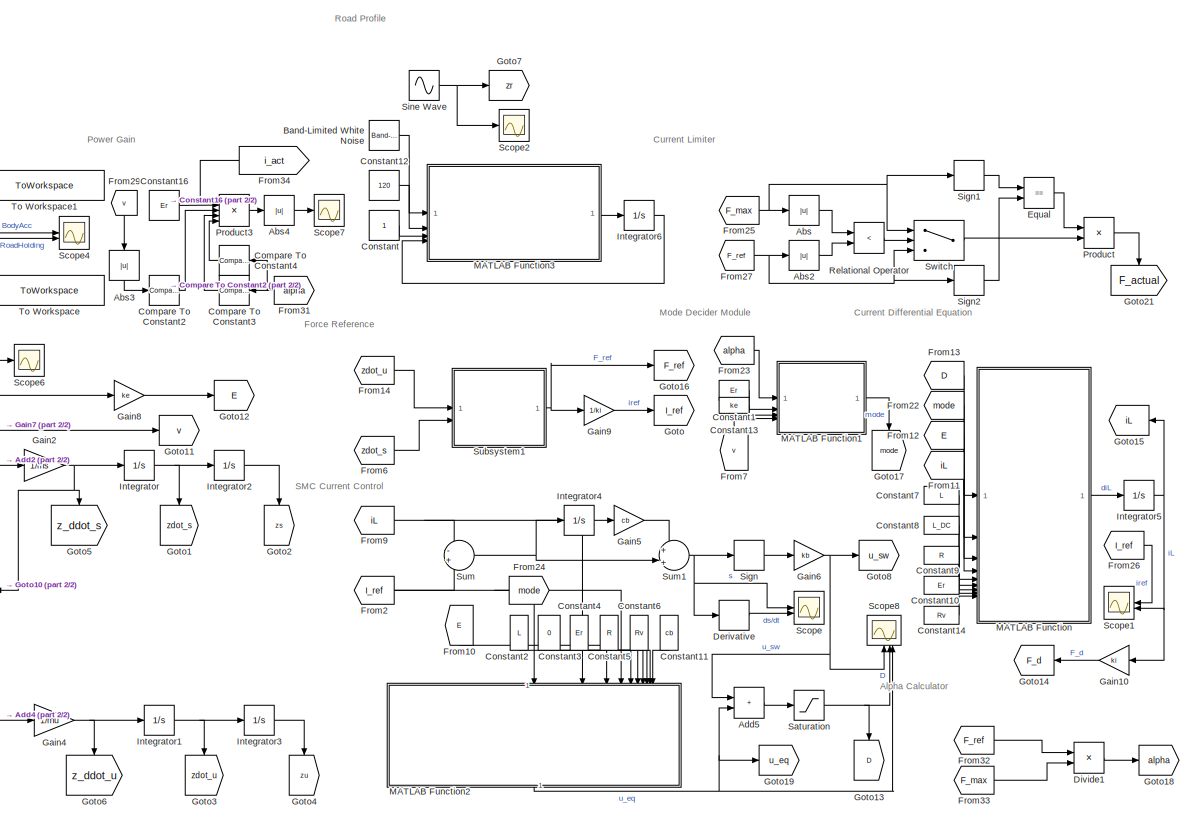
[diagram: root canvas - part 1/2, center side, full height]
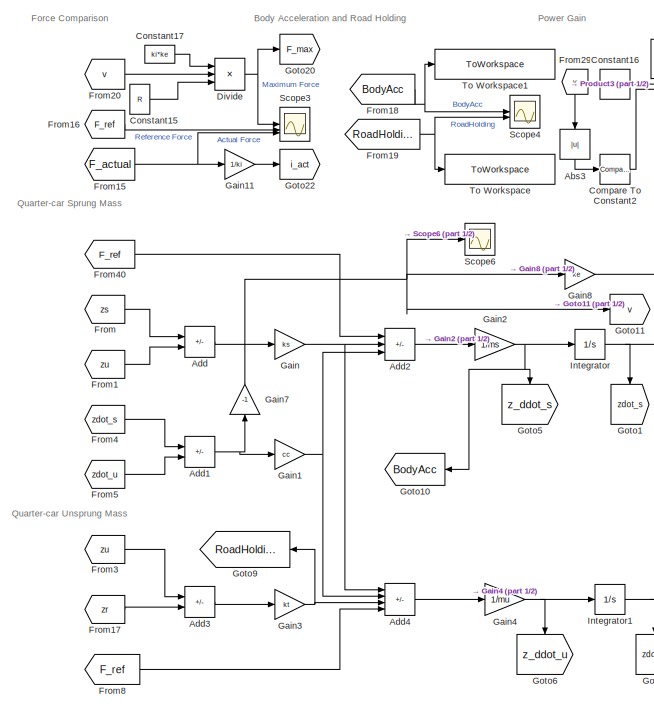
[diagram: root canvas - part 2/2, left side, full height]
MODEL slx_14dfaf5b9d4b
KIND model
CONFIG AbsTol = auto
CONFIG EnableMultiTasking = off
CONFIG FixedStep = 1e-6
CONFIG MaxStep = 1e-3
CONFIG MinStep = 1e-8
CONFIG RelTol = 1e-4
CONFIG SampleTimeConstraint = Unconstrained
CONFIG SolverName = FixedStepAuto
CONFIG StartTime = 0.0
CONFIG StopTime = 1.5
BLOCK [Abs] Abs
  SaturateOnIntegerOverflow = off
BLOCK [Abs] Abs2
  SaturateOnIntegerOverflow = off
BLOCK [Abs] Abs3
  NameLocation = left
  SaturateOnIntegerOverflow = off
BLOCK [Abs] Abs4
  SaturateOnIntegerOverflow = off
BLOCK [Sum] Add
  IconShape = rectangular
  Inputs = +-
BLOCK [Sum] Add1
  IconShape = rectangular
  Inputs = +-
BLOCK [Sum] Add2
  IconShape = rectangular
  Inputs = +--
BLOCK [Sum] Add3
  IconShape = rectangular
  Inputs = +-
BLOCK [Sum] Add4
  IconShape = rectangular
  Inputs = ++--
BLOCK [Sum] Add5
  IconShape = rectangular
BLOCK [Reference] Band-Limited White Noise  REF=simulink/Sources/Band-Limited
White Noise
  SourceBlock = simulink/Sources/Band-Limited\nWhite Noise
  SourceType = Band-Limited White Noise.
BLOCK [Reference] Compare To Constant2  REF=simulink/Logic and Bit
Operations/Compare
To Constant
  SourceBlock = simulink/Logic and Bit\nOperations/Compare\nTo Constant
  SourceType = Compare To Constant
BLOCK [Reference] Compare To Constant3  REF=simulink/Logic and Bit
Operations/Compare
To Constant
  NameLocation = top
  SourceBlock = simulink/Logic and Bit\nOperations/Compare\nTo Constant
  SourceType = Compare To Constant
BLOCK [Reference] Compare To Constant4  REF=simulink/Logic and Bit
Operations/Compare
To Constant
  NameLocation = top
  SourceBlock = simulink/Logic and Bit\nOperations/Compare\nTo Constant
  SourceType = Compare To Constant
BLOCK [Constant] Constant
BLOCK [Constant] Constant1
  Value = Er
BLOCK [Constant] Constant10
  Value = Er
BLOCK [Constant] Constant11
  NameLocation = left
  Value = cb
BLOCK [Constant] Constant12
  Value = 120
BLOCK [Constant] Constant13
  Value = ke
BLOCK [Constant] Constant14
  Value = Rv
BLOCK [Constant] Constant15
  Value = R
BLOCK [Constant] Constant16
  Value = Er
BLOCK [Constant] Constant17
  Value = ki*ke
BLOCK [Constant] Constant2
  NameLocation = left
  Value = L
BLOCK [Constant] Constant3
  NameLocation = left
  Value = 0
BLOCK [Constant] Constant4
  NameLocation = left
  Value = Er
BLOCK [Constant] Constant5
  NameLocation = left
  Value = R
BLOCK [Constant] Constant6
  NameLocation = left
  Value = Rv
BLOCK [Constant] Constant7
  Value = L
BLOCK [Constant] Constant8
  Value = L_DC
BLOCK [Constant] Constant9
  Value = R
BLOCK [Derivative] Derivative
BLOCK [Product] Divide
  Inputs = **/
BLOCK [Product] Divide1
  Inputs = */
BLOCK [RelationalOperator] Equal
  InputSameDT = off
  Operator = ==
  OutDataTypeStr = boolean
  RndMeth = Simplest
BLOCK [From] From
  GotoTag = zs
BLOCK [From] From1
  GotoTag = zu
BLOCK [From] From10
  GotoTag = E
  NameLocation = left
BLOCK [From] From11
  GotoTag = iL
BLOCK [From] From12
  GotoTag = E
BLOCK [From] From13
  GotoTag = D
BLOCK [From] From14
  GotoTag = zdot_u
BLOCK [From] From15
  GotoTag = F_actual
BLOCK [From] From16
  GotoTag = F_ref
BLOCK [From] From17
  GotoTag = zr
BLOCK [From] From18
  GotoTag = BodyAcc
BLOCK [From] From19
  GotoTag = RoadHolding
BLOCK [From] From2
  GotoTag = I_ref
BLOCK [From] From20
  GotoTag = v
BLOCK [From] From22
  GotoTag = mode
BLOCK [From] From23
  GotoTag = alpha
BLOCK [From] From24
  GotoTag = mode
  NameLocation = top
BLOCK [From] From25
  GotoTag = F_max
BLOCK [From] From26
  GotoTag = I_ref
BLOCK [From] From27
  GotoTag = F_ref
  NameLocation = top
BLOCK [From] From29
  GotoTag = v
  NameLocation = left
BLOCK [From] From3
  GotoTag = zu
BLOCK [From] From31
  GotoTag = alpha
  NameLocation = top
BLOCK [From] From32
  GotoTag = F_ref
BLOCK [From] From33
  GotoTag = F_max
BLOCK [From] From34
  GotoTag = i_act
  NameLocation = top
BLOCK [From] From4
  GotoTag = zdot_s
BLOCK [From] From40
  GotoTag = F_ref
BLOCK [From] From5
  GotoTag = zdot_u
BLOCK [From] From6
  GotoTag = zdot_s
BLOCK [From] From7
  GotoTag = v
  NameLocation = right
BLOCK [From] From8
  GotoTag = F_ref
BLOCK [From] From9
  GotoTag = iL
BLOCK [Gain] Gain
  Gain = ks
BLOCK [Gain] Gain1
  Commented = on
  Gain = cc
BLOCK [Gain] Gain10
  Gain = ki
  NameLocation = top
BLOCK [Gain] Gain11
  Gain = 1/ki
BLOCK [Gain] Gain2
  Gain = 1/ms
BLOCK [Gain] Gain3
  Gain = kt
BLOCK [Gain] Gain4
  Gain = 1/mu
BLOCK [Gain] Gain5
  Gain = cb
BLOCK [Gain] Gain6
  Gain = kb
BLOCK [Gain] Gain7
  Gain = -1
  NameLocation = right
BLOCK [Gain] Gain8
  Gain = ke
BLOCK [Gain] Gain9
  Gain = 1/ki
BLOCK [Goto] Goto
  GotoTag = I_ref
BLOCK [Goto] Goto1
  GotoTag = zdot_s
  NameLocation = left
BLOCK [Goto] Goto10
  GotoTag = BodyAcc
  NameLocation = top
BLOCK [Goto] Goto11
  GotoTag = v
BLOCK [Goto] Goto12
  GotoTag = E
BLOCK [Goto] Goto13
  GotoTag = D
  NameLocation = left
BLOCK [Goto] Goto14
  GotoTag = F_d
  NameLocation = top
BLOCK [Goto] Goto15
  GotoTag = iL
  NameLocation = top
BLOCK [Goto] Goto16
  GotoTag = F_ref
BLOCK [Goto] Goto17
  GotoTag = mode
  NameLocation = left
BLOCK [Goto] Goto18
  GotoTag = alpha
BLOCK [Goto] Goto19
  GotoTag = u_eq
BLOCK [Goto] Goto2
  GotoTag = zs
  NameLocation = left
BLOCK [Goto] Goto20
  GotoTag = F_max
BLOCK [Goto] Goto21
  GotoTag = F_actual
  NameLocation = left
BLOCK [Goto] Goto22
  GotoTag = i_act
BLOCK [Goto] Goto3
  GotoTag = zdot_u
  NameLocation = left
BLOCK [Goto] Goto4
  GotoTag = zu
  NameLocation = left
BLOCK [Goto] Goto5
  GotoTag = z_ddot_s
  NameLocation = left
BLOCK [Goto] Goto6
  GotoTag = z_ddot_u
  NameLocation = left
BLOCK [Goto] Goto7
  GotoTag = zr
BLOCK [Goto] Goto8
  GotoTag = u_sw
BLOCK [Goto] Goto9
  GotoTag = RoadHolding
  NameLocation = top
BLOCK [Integrator] Integrator
BLOCK [Integrator] Integrator1
BLOCK [Integrator] Integrator2
BLOCK [Integrator] Integrator3
BLOCK [Integrator] Integrator4
BLOCK [Integrator] Integrator5
BLOCK [Integrator] Integrator6
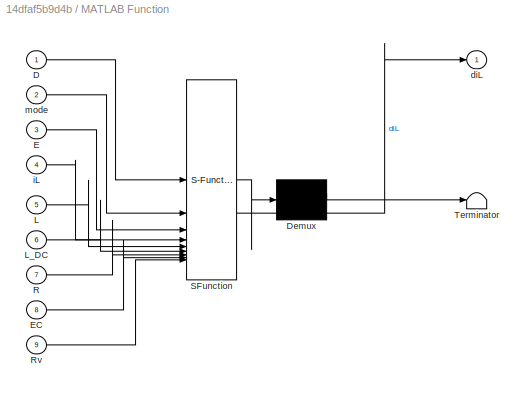
BLOCK [SubSystem] MATLAB Function
  ErrorFcn = Stateflow.Translate.translate
  PermitHierarchicalResolution = ExplicitOnly
  SFBlockType = MATLAB Function
  TreatAsAtomicUnit = on
BLOCK [Demux] MATLAB Function/ Demux 
  Outputs = 1
BLOCK [S-Function] MATLAB Function/ SFunction 
  EnableBusSupport = off
  FunctionName = sf_sfun
  PortCounts = [9 2]
  SFcnIsStateOwnerBlock = off
  SFunctionDeploymentMode = off
  Tag = Stateflow S-Function 2
BLOCK [Terminator] MATLAB Function/ Terminator 
BLOCK [Inport] MATLAB Function/D
BLOCK [Inport] MATLAB Function/E
  Port = 3
BLOCK [Inport] MATLAB Function/EC
  Port = 8
BLOCK [Inport] MATLAB Function/L
  Port = 5
BLOCK [Inport] MATLAB Function/L_DC
  Port = 6
BLOCK [Inport] MATLAB Function/R
  Port = 7
BLOCK [Inport] MATLAB Function/Rv
  Port = 9
BLOCK [Outport] MATLAB Function/diL
BLOCK [Inport] MATLAB Function/iL
  Port = 4
BLOCK [Inport] MATLAB Function/mode
  Port = 2
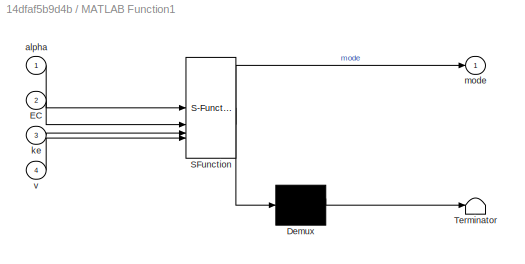
BLOCK [SubSystem] MATLAB Function1
  ErrorFcn = Stateflow.Translate.translate
  PermitHierarchicalResolution = ExplicitOnly
  SFBlockType = MATLAB Function
  TreatAsAtomicUnit = on
BLOCK [Demux] MATLAB Function1/ Demux 
  Outputs = 1
BLOCK [S-Function] MATLAB Function1/ SFunction 
  EnableBusSupport = off
  FunctionName = sf_sfun
  PortCounts = [4 2]
  SFcnIsStateOwnerBlock = off
  SFunctionDeploymentMode = off
  Tag = Stateflow S-Function 1
BLOCK [Terminator] MATLAB Function1/ Terminator 
BLOCK [Inport] MATLAB Function1/EC
  Port = 2
BLOCK [Inport] MATLAB Function1/alpha
BLOCK [Inport] MATLAB Function1/ke
  Port = 3
BLOCK [Outport] MATLAB Function1/mode
BLOCK [Inport] MATLAB Function1/v
  Port = 4
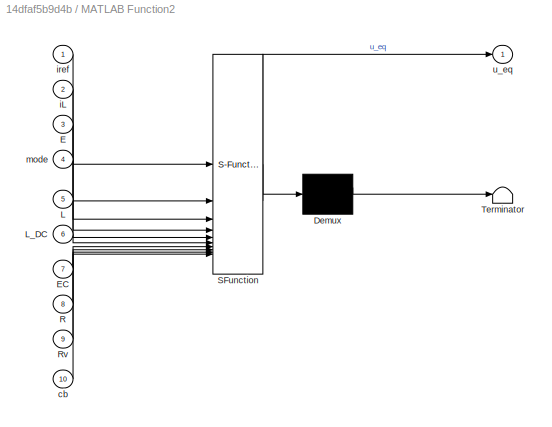
BLOCK [SubSystem] MATLAB Function2
  ErrorFcn = Stateflow.Translate.translate
  NameLocation = left
  PermitHierarchicalResolution = ExplicitOnly
  SFBlockType = MATLAB Function
  TreatAsAtomicUnit = on
BLOCK [Demux] MATLAB Function2/ Demux 
  Outputs = 1
BLOCK [S-Function] MATLAB Function2/ SFunction 
  EnableBusSupport = off
  FunctionName = sf_sfun
  PortCounts = [10 2]
  SFcnIsStateOwnerBlock = off
  SFunctionDeploymentMode = off
  Tag = Stateflow S-Function 3
BLOCK [Terminator] MATLAB Function2/ Terminator 
BLOCK [Inport] MATLAB Function2/E
  Port = 3
BLOCK [Inport] MATLAB Function2/EC
  Port = 7
BLOCK [Inport] MATLAB Function2/L
  Port = 5
BLOCK [Inport] MATLAB Function2/L_DC
  Port = 6
BLOCK [Inport] MATLAB Function2/R
  Port = 8
BLOCK [Inport] MATLAB Function2/Rv
  Port = 9
BLOCK [Inport] MATLAB Function2/cb
  Port = 10
BLOCK [Inport] MATLAB Function2/iL
  Port = 2
BLOCK [Inport] MATLAB Function2/iref
BLOCK [Inport] MATLAB Function2/mode
  Port = 4
BLOCK [Outport] MATLAB Function2/u_eq
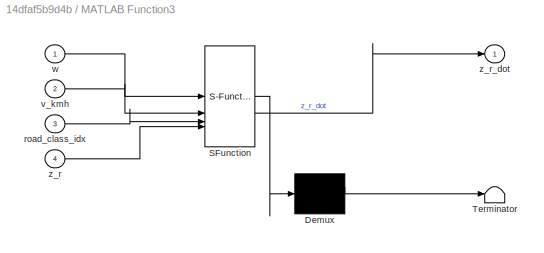
BLOCK [SubSystem] MATLAB Function3
  ErrorFcn = Stateflow.Translate.translate
  PermitHierarchicalResolution = ExplicitOnly
  SFBlockType = MATLAB Function
  TreatAsAtomicUnit = on
BLOCK [Demux] MATLAB Function3/ Demux 
  Outputs = 1
BLOCK [S-Function] MATLAB Function3/ SFunction 
  EnableBusSupport = off
  FunctionName = sf_sfun
  PortCounts = [4 2]
  SFcnIsStateOwnerBlock = off
  SFunctionDeploymentMode = off
  Tag = Stateflow S-Function 4
BLOCK [Terminator] MATLAB Function3/ Terminator 
BLOCK [Inport] MATLAB Function3/road_class_idx
  Port = 3
BLOCK [Inport] MATLAB Function3/v_kmh
  Port = 2
BLOCK [Inport] MATLAB Function3/w
BLOCK [Inport] MATLAB Function3/z_r
  Port = 4
BLOCK [Outport] MATLAB Function3/z_r_dot
BLOCK [Product] Product
BLOCK [Product] Product3
  Inputs = 5
BLOCK [RelationalOperator] Relational Operator
  InputSameDT = off
  Operator = <
  OutDataTypeStr = boolean
  RndMeth = Simplest
BLOCK [Saturate] Saturation
  LowerLimit = 0
  UpperLimit = 1
BLOCK [Scope] Scope
  ActiveDisplayYMaximum = 2.8156790267575293
  ActiveDisplayYMinimum = -2.7447489042083522
  DataLoggingVariableName = ScopeData2
  Floating = off
  GraphicalSettings = {"Style":{"BackgroundColor":[0.12941176470588237,0.12941176470588237,0.12941176470588237],"AxesColor":[0.07058823529411765,0.07058823529411765,0.07058823529411765],"LabelsColor":[0.8509803921568627,0.8509803921568627,0.8509803921568627],"PreserveColors":false,"Visible":[true,true],"LineStyle":["-","-"],"LineWidth":[1.5,1.5],"BarWidth":[0.9,0.9],"LineColor":["auto","auto"],"LineFaceAlpha":[1,1],"Li...<+2401ch>
  LayoutDimensionsString = [1, 2]
  MultipleDisplayCache = [{"MaxYLimMag":2.8156790267575293,"MaxYLimReal":2.8156790267575293,"MinYLimMag":0,"MinYLimReal":-2.7447489042083522,"PlotAsMagnitudePhase":false,"ShowGrid":true,"ShowLegend":true,"Title":"%<SignalLabel>","YLabel":""},{"MaxYLimMag":45.98161752291157,"MaxYLimReal":45.791063072420066,"MinYLimMag":0,"MinYLimReal":-45.98161752291157,"PlotAsMagnitudePhase":false,"ShowGrid":true,"ShowLegend":true,"Title"...<+31ch>
  NumInputPorts = 2
  ScopeFrameLocation = window
  ShowLegend = on
  Visible = on
  WasSavedAsWebScope = on
  WindowPosition = [241.000000,208.000000,958.000000,484.000000,]
BLOCK [Scope] Scope1
  ActiveDisplayYMaximum = 1
  ActiveDisplayYMinimum = -1
  Floating = off
  GraphicalSettings = {"Style":{"BackgroundColor":[0.12941176470588237,0.12941176470588237,0.12941176470588237],"AxesColor":[0.07058823529411765,0.07058823529411765,0.07058823529411765],"LabelsColor":[0.8509803921568627,0.8509803921568627,0.8509803921568627],"PreserveColors":false,"Visible":[true,true],"LineStyle":["-","-"],"LineWidth":[1.5,1.5],"BarWidth":[0.9,0.9],"LineColor":["auto","auto"],"LineFaceAlpha":[1,1],"Li...<+2091ch>
  MultipleDisplayCache = [{"MaxYLimMag":1,"MaxYLimReal":1,"MinYLimMag":0,"MinYLimReal":-1,"PlotAsMagnitudePhase":false,"ShowGrid":true,"ShowLegend":true,"Title":"%<SignalLabel>","YLabel":""}]
  NameLocation = top
  NumInputPorts = 2
  ScopeFrameLocation = window
  ShowLegend = on
  WasSavedAsWebScope = on
  WindowPosition = [9.000000,9.000000,1424.000000,831.000000,]
BLOCK [Scope] Scope2
  ActiveDisplayYMaximum = 0.037499999999892668
  ActiveDisplayYMinimum = -0.037499999999981493
  DataLoggingVariableName = ScopeData1
  Floating = off
  GraphicalSettings = {"Style":{"BackgroundColor":[0.12941176470588237,0.12941176470588237,0.12941176470588237],"AxesColor":[0.07058823529411765,0.07058823529411765,0.07058823529411765],"LabelsColor":[0.8509803921568627,0.8509803921568627,0.8509803921568627],"PreserveColors":false,"Visible":[true],"LineStyle":["-"],"LineWidth":[1.5],"BarWidth":[0.9],"LineColor":["auto"],"LineFaceAlpha":[1],"LineEdgeAlpha":[1],"Marker":...<+2012ch>
  MultipleDisplayCache = [{"MaxYLimMag":0.037499999999981493,"MaxYLimReal":0.037499999999892668,"MinYLimMag":0,"MinYLimReal":-0.037499999999981493,"PlotAsMagnitudePhase":false,"ShowGrid":true,"ShowLegend":false,"Title":"%<SignalLabel>","YLabel":""}]
  NumInputPorts = 1
  ScopeFrameLocation = window
  Visible = on
  WasSavedAsWebScope = on
  WindowPosition = [440.000000,240.000000,560.000000,420.000000,]
BLOCK [Scope] Scope3
  ActiveDisplayYMaximum = 3069.3182623125076
  ActiveDisplayYMinimum = -3070.1290805811605
  DataLoggingVariableName = ScopeData4
  Floating = off
  GraphicalSettings = {"Style":{"BackgroundColor":[0.12941176470588237,0.12941176470588237,0.12941176470588237],"AxesColor":[0.07058823529411765,0.07058823529411765,0.07058823529411765],"LabelsColor":[0.8509803921568627,0.8509803921568627,0.8509803921568627],"PreserveColors":false,"Visible":[false,true,true],"LineStyle":["-","-","-"],"LineWidth":[1.5,1.5,1.5],"BarWidth":[0.9,0.9,0.9],"LineColor":["auto","auto","auto"],...<+2265ch>
  MultipleDisplayCache = [{"MaxYLimMag":3070.1290805811605,"MaxYLimReal":3069.3182623125076,"MinYLimMag":0,"MinYLimReal":-3070.1290805811605,"PlotAsMagnitudePhase":false,"ShowGrid":true,"ShowLegend":true,"Title":"%<SignalLabel>","YLabel":""}]
  NumInputPorts = 3
  ScopeFrameLocation = window
  ShowLegend = on
  Visible = on
  WasSavedAsWebScope = on
  WindowPosition = [241.000000,208.000000,958.000000,484.000000,]
BLOCK [Scope] Scope4
  ActiveDisplayYMaximum = 2.7604562325107063
  ActiveDisplayYMinimum = -2.7443802906058909
  DataLoggingVariableName = ScopeData5
  Floating = off
  GraphicalSettings = {"Style":{"BackgroundColor":[0.12941176470588237,0.12941176470588237,0.12941176470588237],"AxesColor":[0.07058823529411765,0.07058823529411765,0.07058823529411765],"LabelsColor":[0.8509803921568627,0.8509803921568627,0.8509803921568627],"PreserveColors":false,"Visible":[true,true],"LineStyle":["-","-"],"LineWidth":[1.5,1.5],"BarWidth":[0.9,0.9],"LineColor":["auto","auto"],"LineFaceAlpha":[1,1],"Li...<+2426ch>
  LayoutDimensionsString = [2, 1]
  MultipleDisplayCache = [{"MaxYLimMag":2.7604562325107063,"MaxYLimReal":2.7604562325107063,"MinYLimMag":0,"MinYLimReal":-2.7443802906058909,"PlotAsMagnitudePhase":false,"ShowGrid":true,"ShowLegend":true,"Title":"%<SignalLabel>","YLabel":""},{"MaxYLimMag":245.05874952396346,"MaxYLimReal":238.86069434016116,"MinYLimMag":0,"MinYLimReal":-245.05874952396346,"PlotAsMagnitudePhase":false,"ShowGrid":true,"ShowLegend":true,"Titl...<+33ch>
  NumInputPorts = 2
  ScopeFrameLocation = window
  ShowLegend = on
  Visible = on
  WasSavedAsWebScope = on
  WindowPosition = [1.000000,1.000000,1440.000000,847.000000,]
BLOCK [Scope] Scope6
  ActiveDisplayYMaximum = 0.40056532030192649
  ActiveDisplayYMinimum = -0.36866118759995997
  DataLoggingVariableName = ScopeData6
  Floating = off
  GraphicalSettings = {"Style":{"BackgroundColor":[0.12941176470588237,0.12941176470588237,0.12941176470588237],"AxesColor":[0.07058823529411765,0.07058823529411765,0.07058823529411765],"LabelsColor":[0.8509803921568627,0.8509803921568627,0.8509803921568627],"PreserveColors":false,"Visible":[true],"LineStyle":["-"],"LineWidth":[1.5],"BarWidth":[0.9],"LineColor":["auto"],"LineFaceAlpha":[1],"LineEdgeAlpha":[1],"Marker":...<+1988ch>
  MultipleDisplayCache = [{"MaxYLimMag":0.40056532030192649,"MaxYLimReal":0.40056532030192649,"MinYLimMag":0,"MinYLimReal":-0.36866118759995997,"PlotAsMagnitudePhase":false,"ShowGrid":true,"ShowLegend":false,"Title":"%<SignalLabel>","YLabel":""}]
  NumInputPorts = 1
  ScopeFrameLocation = window
  Visible = on
  WasSavedAsWebScope = on
  WindowPosition = [483.000000,50.000000,958.000000,484.000000,]
BLOCK [Scope] Scope7
  ActiveDisplayYMaximum = 99.083008575405614
  ActiveDisplayYMinimum = -11.009223175045067
  DataLoggingVariableName = ScopeData7
  Floating = off
  GraphicalSettings = {"Style":{"BackgroundColor":[0.12941176470588237,0.12941176470588237,0.12941176470588237],"AxesColor":[0.07058823529411765,0.07058823529411765,0.07058823529411765],"LabelsColor":[0.8509803921568627,0.8509803921568627,0.8509803921568627],"PreserveColors":false,"Visible":[true],"LineStyle":["-"],"LineWidth":[1.5],"BarWidth":[0.9],"LineColor":["auto"],"LineFaceAlpha":[1],"LineEdgeAlpha":[1],"Marker":...<+1989ch>
  MultipleDisplayCache = [{"MaxYLimMag":99.083008575405614,"MaxYLimReal":99.083008575405614,"MinYLimMag":0,"MinYLimReal":-11.009223175045067,"PlotAsMagnitudePhase":false,"ShowGrid":true,"ShowLegend":false,"Title":"%<SignalLabel>","YLabel":""}]
  NumInputPorts = 1
  ScopeFrameLocation = window
  Visible = on
  WasSavedAsWebScope = on
  WindowPosition = [9.000000,9.000000,1424.000000,831.000000,]
BLOCK [Scope] Scope8
  ActiveDisplayYMaximum = 2.8491770678518753
  ActiveDisplayYMinimum = -1.7651094697775311
  DataLoggingVariableName = ScopeData8
  Floating = off
  GraphicalSettings = {"Style":{"BackgroundColor":[0.12941176470588237,0.12941176470588237,0.12941176470588237],"AxesColor":[0.07058823529411765,0.07058823529411765,0.07058823529411765],"LabelsColor":[0.8509803921568627,0.8509803921568627,0.8509803921568627],"PreserveColors":false,"Visible":[true,true,true],"LineStyle":["-","-","-"],"LineWidth":[1.5,1.5,1.5],"BarWidth":[0.9,0.9,0.9],"LineColor":["auto","auto","auto"],"...<+2202ch>
  MultipleDisplayCache = [{"MaxYLimMag":2.8491770678518753,"MaxYLimReal":2.8491770678518753,"MinYLimMag":0,"MinYLimReal":-1.7651094697775311,"PlotAsMagnitudePhase":false,"ShowGrid":true,"ShowLegend":true,"Title":"%<SignalLabel>","YLabel":""}]
  NameLocation = right
  NumInputPorts = 3
  ScopeFrameLocation = window
  ShowLegend = on
  Visible = on
  WasSavedAsWebScope = on
  WindowPosition = [2.000000,50.000000,958.000000,484.000000,]
BLOCK [Signum] Sign
BLOCK [Signum] Sign1
BLOCK [Signum] Sign2
BLOCK [Sin] Sine Wave
  Amplitude = 0.03
  Frequency = 2*pi*1.3
  SampleTime = 0
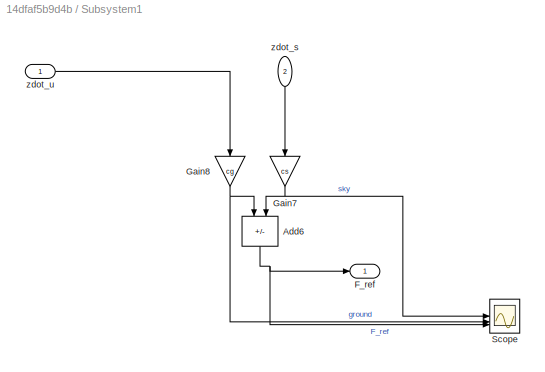
BLOCK [SubSystem] Subsystem1
  NameLocation = top
BLOCK [Sum] Subsystem1/Add6
  IconShape = rectangular
  Inputs = --
  NameLocation = left
BLOCK [Outport] Subsystem1/F_ref
BLOCK [Gain] Subsystem1/Gain7
  Gain = cs
  NameLocation = left
BLOCK [Gain] Subsystem1/Gain8
  Gain = cg
  NameLocation = left
BLOCK [Scope] Subsystem1/Scope
  ActiveDisplayYMaximum = 232.10620472540066
  ActiveDisplayYMinimum = -234.54288401118075
  DataLoggingVariableName = ScopeData10
  Floating = off
  GraphicalSettings = {"Style":{"BackgroundColor":[0.12941176470588237,0.12941176470588237,0.12941176470588237],"AxesColor":[0.07058823529411765,0.07058823529411765,0.07058823529411765],"LabelsColor":[0.8509803921568627,0.8509803921568627,0.8509803921568627],"PreserveColors":false,"Visible":[true,true,true],"LineStyle":["-","-","-"],"LineWidth":[1.5,1.5,1.5],"BarWidth":[0.9,0.9,0.9],"LineColor":["auto","auto","auto"],"...<+2211ch>
  MultipleDisplayCache = [{"MaxYLimMag":234.54288401118075,"MaxYLimReal":232.10620472540066,"MinYLimMag":0,"MinYLimReal":-234.54288401118075,"PlotAsMagnitudePhase":false,"ShowGrid":true,"ShowLegend":true,"Title":"%<SignalLabel>","YLabel":""}]
  NumInputPorts = 3
  ScopeFrameLocation = window
  ShowLegend = on
  Visible = on
  WasSavedAsWebScope = on
  WindowPosition = [8.000000,8.000000,1425.000000,832.000000,]
BLOCK [Inport] Subsystem1/zdot_s
  NameLocation = left
  Port = 2
BLOCK [Inport] Subsystem1/zdot_u
BLOCK [Sum] Sum
  Inputs = -+
BLOCK [Sum] Sum1
  Inputs = +|+||
BLOCK [Switch] Switch
  Criteria = u2 > Threshold
  InputSameDT = off
  SaturateOnIntegerOverflow = off
  Threshold = 0.5
BLOCK [ToWorkspace] To Workspace
  FixptAsFi = on
  MaxDataPoints = inf
  SampleTime = -1
  SaveFormat = Structure With Time
  VariableName = RoadHolding
BLOCK [ToWorkspace] To Workspace1
  FixptAsFi = on
  MaxDataPoints = inf
  SampleTime = -1
  SaveFormat = Structure With Time
  VariableName = BodyAcceleration
ANNOTATION (root): Alpha Calculator
ANNOTATION (root): Body Acceleration and Road Holding
ANNOTATION (root): Current Differential Equation
ANNOTATION (root): Current Limiter
ANNOTATION (root): Force Comparison
ANNOTATION (root): Force Reference
ANNOTATION (root): Mode Decider Module
ANNOTATION (root): Power Gain
ANNOTATION (root): Quarter-car Sprung Mass
ANNOTATION (root): Quarter-car Unsprung Mass
ANNOTATION (root): Road Profile
ANNOTATION (root): SMC Current Control
LINE Abs2:1 -> Relational Operator:2
LINE Abs3:1 -> Compare To Constant2:1
LINE Abs4:1 -> Scope7:1
LINE Abs:1 -> Relational Operator:1
NET Add1:1 -> Gain1:1, Gain7:1
LINE Add2:1 -> Gain2:1
LINE Add3:1 -> Gain3:1
LINE Add4:1 -> Gain4:1
LINE Add5:1 -> Saturation:1
LINE Add:1 -> Gain:1
LINE Band-Limited White Noise:1 -> MATLAB Function3:1
LINE Compare To Constant2:1 -> Product3:3
LINE Compare To Constant3:1 -> Product3:4
LINE Compare To Constant4:1 -> Product3:5
LINE Constant10:1 -> MATLAB Function:8
LINE Constant11:1 -> MATLAB Function2:10
LINE Constant12:1 -> MATLAB Function3:2
LINE Constant13:1 -> MATLAB Function1:3
LINE Constant14:1 -> MATLAB Function:9
LINE Constant15:1 -> Divide:3
LINE Constant16:1 -> Product3:2
LINE Constant17:1 -> Divide:1
LINE Constant1:1 -> MATLAB Function1:2
LINE Constant2:1 -> MATLAB Function2:5
LINE Constant3:1 -> MATLAB Function2:6
LINE Constant4:1 -> MATLAB Function2:7
LINE Constant5:1 -> MATLAB Function2:8
LINE Constant6:1 -> MATLAB Function2:9
LINE Constant7:1 -> MATLAB Function:5
LINE Constant8:1 -> MATLAB Function:6
LINE Constant9:1 -> MATLAB Function:7
LINE Constant:1 -> MATLAB Function3:3
LINE Derivative:1 -> Scope:2
LINE Divide1:1 -> Goto18:1
NET Divide:1 -> Goto20:1, Scope3:1
LINE Equal:1 -> Product:1
LINE From10:1 -> MATLAB Function2:3
LINE From11:1 -> MATLAB Function:4
LINE From12:1 -> MATLAB Function:3
LINE From13:1 -> MATLAB Function:1
LINE From14:1 -> Subsystem1:1
NET From15:1 -> Gain11:1, Scope3:3
LINE From16:1 -> Scope3:2
LINE From17:1 -> Add3:2
NET From18:1 -> Scope4:1, To Workspace1:1
NET From19:1 -> Scope4:2, To Workspace:1
LINE From1:1 -> Add:2
LINE From20:1 -> Divide:2
LINE From22:1 -> MATLAB Function:2
LINE From23:1 -> MATLAB Function1:1
LINE From24:1 -> MATLAB Function2:4
NET From25:1 -> Abs:1, Sign1:1, Switch:1
LINE From26:1 -> Scope1:1
NET From27:1 -> Abs2:1, Sign2:1, Switch:3
LINE From29:1 -> Abs3:1
NET From2:1 -> MATLAB Function2:1, Sum:2
NET From31:1 -> Compare To Constant3:1, Compare To Constant4:1
LINE From32:1 -> Divide1:1
LINE From33:1 -> Divide1:2
LINE From34:1 -> Product3:1
LINE From3:1 -> Add3:1
LINE From40:1 -> Add2:1
LINE From4:1 -> Add1:1
LINE From5:1 -> Add1:2
LINE From6:1 -> Subsystem1:2
LINE From7:1 -> MATLAB Function1:4
LINE From8:1 -> Add4:4
NET From9:1 -> MATLAB Function2:2, Sum:1
LINE From:1 -> Add:1
LINE Gain10:1 -> Goto14:1
LINE Gain11:1 -> Goto22:1
NET Gain1:1 -> Add2:3, Add4:2
NET Gain2:1 -> Goto10:1, Goto5:1, Integrator:1
NET Gain3:1 -> Add4:3, Goto9:1
NET Gain4:1 -> Goto6:1, Integrator1:1
LINE Gain5:1 -> Sum1:1
NET Gain6:1 -> Add5:1, Goto8:1, Scope8:1
NET Gain7:1 -> Gain8:1, Goto11:1, Scope6:1
LINE Gain8:1 -> Goto12:1
LINE Gain9:1 -> Goto:1
NET Gain:1 -> Add2:2, Add4:1
NET Integrator1:1 -> Goto3:1, Integrator3:1
LINE Integrator2:1 -> Goto2:1
LINE Integrator3:1 -> Goto4:1
LINE Integrator4:1 -> Gain5:1
NET Integrator5:1 -> Gain10:1, Goto15:1, Scope1:2
LINE Integrator6:1 -> MATLAB Function3:4
NET Integrator:1 -> Goto1:1, Integrator2:1
LINE MATLAB Function1:1 -> Goto17:1
NET MATLAB Function2:1 -> Add5:2, Goto19:1, Scope8:3
LINE MATLAB Function3:1 -> Integrator6:1
LINE MATLAB Function:1 -> Integrator5:1
LINE Product3:1 -> Abs4:1
LINE Product:1 -> Goto21:1
LINE Relational Operator:1 -> Switch:2
NET Saturation:1 -> Goto13:1, Scope8:2
LINE Sign1:1 -> Equal:1
LINE Sign2:1 -> Equal:2
LINE Sign:1 -> Gain6:1
NET Sine Wave:1 -> Goto7:1, Scope2:1
NET Subsystem1/Add6:1 -> Subsystem1/F_ref:1, Subsystem1/Scope:3
NET Subsystem1/Gain7:1 -> Subsystem1/Add6:2, Subsystem1/Scope:1
NET Subsystem1/Gain8:1 -> Subsystem1/Add6:1, Subsystem1/Scope:2
LINE Subsystem1/zdot_s:1 -> Subsystem1/Gain7:1
LINE Subsystem1/zdot_u:1 -> Subsystem1/Gain8:1
NET Subsystem1:1 -> Gain9:1, Goto16:1
NET Sum1:1 -> Derivative:1, Scope:1, Sign:1
NET Sum:1 -> Integrator4:1, Sum1:2
LINE Switch:1 -> Product:2
note: NET lines group one-source signal fan-out (src -> all destinations, sorted); 1:1 wires keep LINE
CHART MATLAB Function1 states=1 transitions=1
  STATE_LABEL 'eML_blk_kernel()'
  STATE_LABEL 'SCRIPT:\nfunction mode = mode(alpha, EC, ke, v)\n\n    % guard against alpha >= 1\n    if alpha >= 1\n        % semi-active not achievable\n        % both VT1 and VT2 on, passive damper\n        mode = 1;   % or handle separately\n        return\n    end\n\n    v_alpha = EC / (ke * (1 - alpha));\n\n    if abs(v) < v_alpha\n        mode = 1;   % boost\n    else\n        mode = 0;   % buck\n    end\nend'
CHART MATLAB Function states=1 transitions=1
  STATE_LABEL 'eML_blk_kernel()'
  STATE_LABEL 'SCRIPT:\nfunction diL = diL(D, mode, E, iL, L, L_DC, R, EC, Rv)\n    LDC = L + L_DC;\n    if mode == 1  % boost\n        diL = -(R/LDC)*iL - ((1-D)/LDC)*EC + (1/LDC)*E;\n    else          % buck\n        diL  = -((D*R*L + (1-D)*(R+Rv)*LDC)/(L * LDC))*iL - (D/LDC)*EC + (D*L + (1-D)*LDC)/(L * LDC) * E;\n    end\nend'
CHART MATLAB Function2 states=1 transitions=1
  STATE_LABEL 'eML_blk_kernel()'
  STATE_LABEL 'SCRIPT:\nfunction u_eq = controller(iref, iL, E, mode, L, L_DC, EC, R, Rv, cb)\n    LDC = L + L_DC;\n    e   = iref - iL;        % current error\n\n    if mode == 1  % boost\n        numerator   = EC - E + R*iref + cb*e*LDC;\n        denominator = EC;\n        u_eq = numerator / denominator;\n\n    else          % buck\n        numerator   = E - (R + Rv)*iref - cb*e*L;\n        denominator = (L*R*iref)/LDC - ...<+89ch>'
CHART MATLAB Function3 states=1 transitions=1
  STATE_LABEL 'eML_blk_kernel()'
  STATE_LABEL 'SCRIPT:\nfunction z_r_dot = iso_road_filter(w, v_kmh, road_class_idx, z_r)\n    % Inputs:\n    %   w              - White noise input signal\n    %   v_kmh          - Vehicle speed in km/h from workspace\n    %   road_class_idx - 1 for Class B, 2 for Class D\n    %   z_r            - Current road displacement (feedback loop)\n    \n    % Constants\n    n_0 = 0.1;   % Reference spatial frequency (cycles/m)\n...<+525ch>'
CHART  states=0 transitions=0
CHART  states=0 transitions=0
CHART  states=0 transitions=0
CHART  states=0 transitions=0
